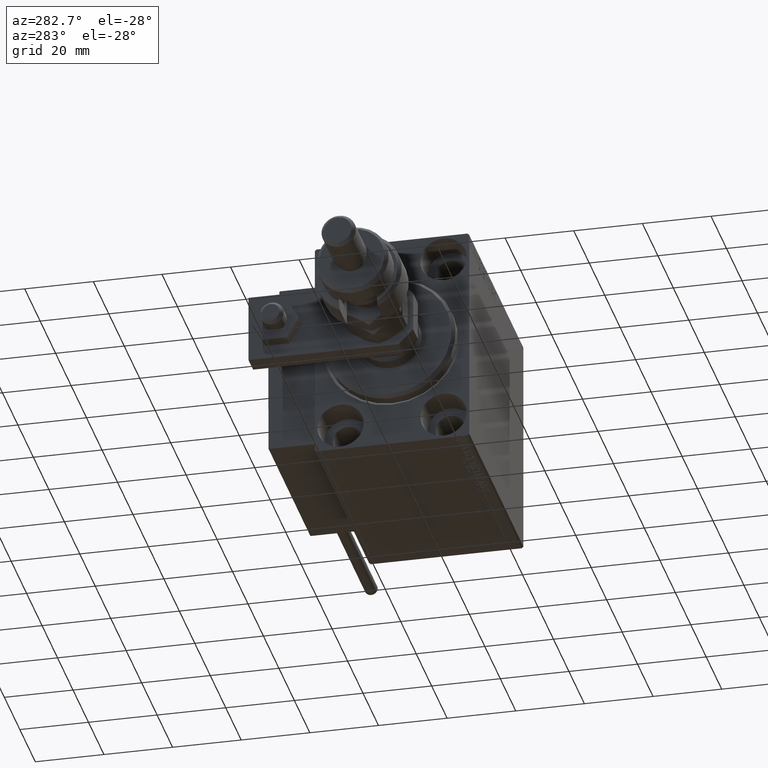
[diagram: clean part render]
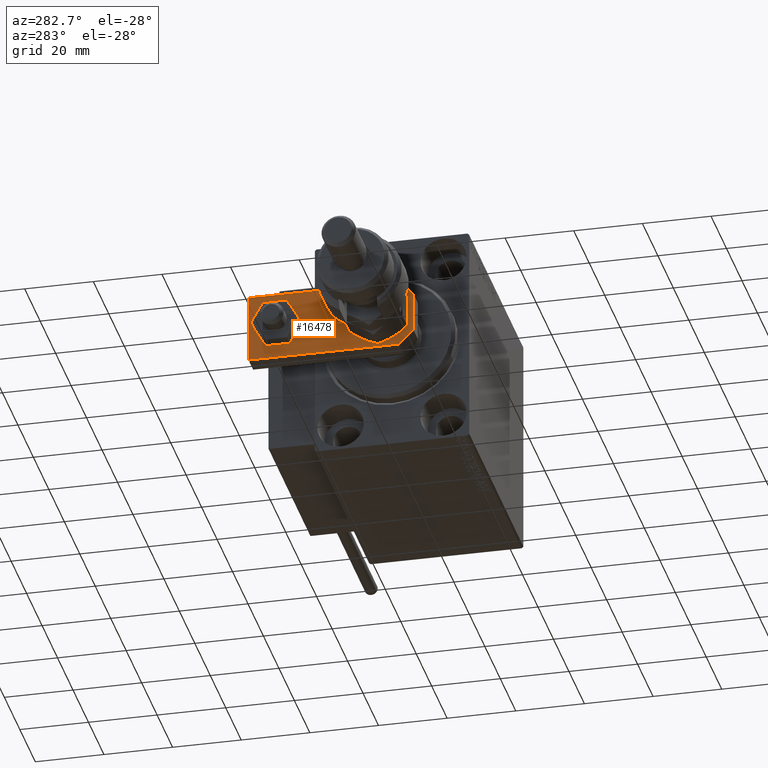
[diagram: same view with one face highlighted and labeled with its STEP entity id]
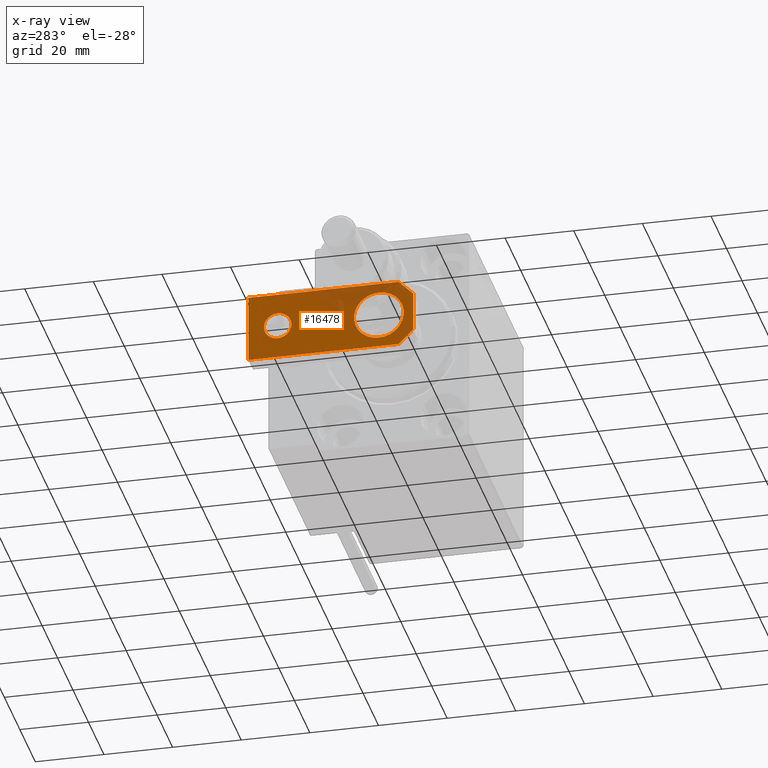
[diagram: x-ray of the same camera — body ghosted, the highlighted face saturated]
A machine part, auxiliary view. The second image highlights one B-rep face of the part: STEP entity #16478.
The next image is the same camera in x-ray: the body ghosted, the highlighted face saturated — about 16% of this face is hidden behind the body in this view.
In plain terms, the highlighted planar face has unit normal (-1, 0, 0).
Its self-contained STEP definition (entity closure, byte-faithful):
#24 = DIRECTION ( 'NONE',  ( -7.228014483236695816E-17, 1.000000000000000000, 0.000000000000000000 ) ) ;
#1155 = AXIS2_PLACEMENT_3D ( 'NONE', #45287, #20260, #33181 ) ;
#1897 = CARTESIAN_POINT ( 'NONE',  ( -4.000000000000000888, 39.50000000000000000, 6.000000000000000000 ) ) ;
#2245 = ORIENTED_EDGE ( 'NONE', *, *, #37503, .F. ) ;
#2305 = VERTEX_POINT ( 'NONE', #27616 ) ;
#2429 = DIRECTION ( 'NONE',  ( -1.000000000000000000, 0.000000000000000000, 0.000000000000000000 ) ) ;
#2437 = PLANE ( 'NONE',  #41301 ) ;
#3530 = VERTEX_POINT ( 'NONE', #35622 ) ;
#3766 = VERTEX_POINT ( 'NONE', #42326 ) ;
#5132 = DIRECTION ( 'NONE',  ( 0.7071067811865464625, -0.7071067811865486830, 0.000000000000000000 ) ) ;
#5403 = CIRCLE ( 'NONE', #1155, 7.250000000000000000 ) ;
#7005 = FACE_BOUND ( 'NONE', #32403, .T. ) ;
#7854 = EDGE_CURVE ( 'NONE', #14682, #37160, #33189, .T. ) ;
#8200 = DIRECTION ( 'NONE',  ( 1.000000000000000000, 0.000000000000000000, 0.000000000000000000 ) ) ;
#8760 = ORIENTED_EDGE ( 'NONE', *, *, #39430, .F. ) ;
#9091 = DIRECTION ( 'NONE',  ( 1.000000000000000000, 0.000000000000000000, 0.000000000000000000 ) ) ;
#9419 = CARTESIAN_POINT ( 'NONE',  ( -2.880000000000006999, -2.879999999999998561, 6.000000000000000000 ) ) ;
#9606 = EDGE_LOOP ( 'NONE', ( #16649, #29795, #47830, #31931, #33652, #28852 ) ) ;
#9820 = VERTEX_POINT ( 'NONE', #43743 ) ;
#10135 = VECTOR ( 'NONE', #44813, 1000.000000000000114 ) ;
#10544 = EDGE_CURVE ( 'NONE', #3766, #34253, #48882, .T. ) ;
#10783 = VERTEX_POINT ( 'NONE', #42420 ) ;
#10998 = DIRECTION ( 'NONE',  ( 0.000000000000000000, 0.000000000000000000, 1.000000000000000000 ) ) ;
#11526 = CARTESIAN_POINT ( 'NONE',  ( -1.432611055310774642E-16, 39.50000000000000000, 6.000000000000000000 ) ) ;
#13877 = EDGE_CURVE ( 'NONE', #37160, #14682, #20549, .T. ) ;
#14661 = EDGE_CURVE ( 'NONE', #3530, #3766, #34953, .T. ) ;
#14682 = VERTEX_POINT ( 'NONE', #1897 ) ;
#14772 = CARTESIAN_POINT ( 'NONE',  ( 0.000000000000000000, 0.000000000000000000, 6.000000000000000000 ) ) ;
#16247 = VECTOR ( 'NONE', #28173, 1000.000000000000000 ) ;
#16478 = ADVANCED_FACE ( 'NONE', ( #7005, #46811, #18546 ), #2437, .T. ) ;
#16649 = ORIENTED_EDGE ( 'NONE', *, *, #10544, .T. ) ;
#17378 = VECTOR ( 'NONE', #24, 1000.000000000000000 ) ;
#18546 = FACE_BOUND ( 'NONE', #48738, .T. ) ;
#18866 = VECTOR ( 'NONE', #2429, 1000.000000000000000 ) ;
#19183 = AXIS2_PLACEMENT_3D ( 'NONE', #28857, #24294, #25096 ) ;
#20112 = EDGE_CURVE ( 'NONE', #33985, #3530, #37377, .T. ) ;
#20260 = DIRECTION ( 'NONE',  ( 0.000000000000000000, 0.000000000000000000, 1.000000000000000000 ) ) ;
#20287 = LINE ( 'NONE', #45046, #30576 ) ;
#20549 = CIRCLE ( 'NONE', #24868, 4.000000000000000888 ) ;
#21497 = CARTESIAN_POINT ( 'NONE',  ( 10.00000000000000533, 4.239999999999986890, 6.000000000000000000 ) ) ;
#24294 = DIRECTION ( 'NONE',  ( 0.000000000000000000, 0.000000000000000000, 1.000000000000000000 ) ) ;
#24868 = AXIS2_PLACEMENT_3D ( 'NONE', #49972, #28988, #9091 ) ;
#25096 = DIRECTION ( 'NONE',  ( 1.000000000000000000, 0.000000000000000000, 0.000000000000000000 ) ) ;
#27616 = CARTESIAN_POINT ( 'NONE',  ( 7.250000000000000000, 10.00000000000000355, 6.000000000000000000 ) ) ;
#28173 = DIRECTION ( 'NONE',  ( -1.084202172485504434E-16, -1.000000000000000000, 0.000000000000000000 ) ) ;
#28431 = CARTESIAN_POINT ( 'NONE',  ( -10.00000000000000000, 48.00000000000000000, 6.000000000000000000 ) ) ;
#28852 = ORIENTED_EDGE ( 'NONE', *, *, #14661, .T. ) ;
#28857 = CARTESIAN_POINT ( 'NONE',  ( -9.629649721936179265E-32, 10.00000000000000178, 6.000000000000000000 ) ) ;
#28884 = AXIS2_PLACEMENT_3D ( 'NONE', #11526, #10998, #52658 ) ;
#28988 = DIRECTION ( 'NONE',  ( 0.000000000000000000, 0.000000000000000000, 1.000000000000000000 ) ) ;
#29795 = ORIENTED_EDGE ( 'NONE', *, *, #40043, .T. ) ;
#30576 = VECTOR ( 'NONE', #8200, 1000.000000000000000 ) ;
#30666 = DIRECTION ( 'NONE',  ( 1.000000000000000000, 0.000000000000000000, 0.000000000000000000 ) ) ;
#31846 = EDGE_CURVE ( 'NONE', #9820, #42327, #20287, .T. ) ;
#31931 = ORIENTED_EDGE ( 'NONE', *, *, #52018, .T. ) ;
#32403 = EDGE_LOOP ( 'NONE', ( #47792, #32728 ) ) ;
#32728 = ORIENTED_EDGE ( 'NONE', *, *, #13877, .F. ) ;
#33181 = DIRECTION ( 'NONE',  ( 1.000000000000000000, 0.000000000000000000, 0.000000000000000000 ) ) ;
#33189 = CIRCLE ( 'NONE', #28884, 4.000000000000000888 ) ;
#33652 = ORIENTED_EDGE ( 'NONE', *, *, #20112, .T. ) ;
#33985 = VERTEX_POINT ( 'NONE', #21497 ) ;
#34253 = VERTEX_POINT ( 'NONE', #36489 ) ;
#34953 = LINE ( 'NONE', #39787, #18866 ) ;
#34960 = DIRECTION ( 'NONE',  ( -0.000000000000000000, 0.000000000000000000, 1.000000000000000000 ) ) ;
#35622 = CARTESIAN_POINT ( 'NONE',  ( 10.00000000000000178, 48.00000000000000000, 6.000000000000000000 ) ) ;
#36489 = CARTESIAN_POINT ( 'NONE',  ( -10.00000000000000533, 4.240000000000021529, 6.000000000000000000 ) ) ;
#36833 = CARTESIAN_POINT ( 'NONE',  ( 10.00000000000000533, 0.000000000000000000, 6.000000000000000000 ) ) ;
#36928 = CARTESIAN_POINT ( 'NONE',  ( 5.759999999999998010, 0.000000000000000000, 6.000000000000000000 ) ) ;
#37160 = VERTEX_POINT ( 'NONE', #39991 ) ;
#37377 = LINE ( 'NONE', #36833, #17378 ) ;
#37503 = EDGE_CURVE ( 'NONE', #10783, #2305, #5403, .T. ) ;
#39430 = EDGE_CURVE ( 'NONE', #2305, #10783, #49269, .T. ) ;
#39787 = CARTESIAN_POINT ( 'NONE',  ( 10.00000000000000178, 48.00000000000000000, 6.000000000000000000 ) ) ;
#39991 = CARTESIAN_POINT ( 'NONE',  ( 4.000000000000000888, 39.50000000000000000, 6.000000000000000000 ) ) ;
#40043 = EDGE_CURVE ( 'NONE', #34253, #9820, #45473, .T. ) ;
#40780 = CARTESIAN_POINT ( 'NONE',  ( 2.879999999999984350, -2.879999999999999005, 6.000000000000000000 ) ) ;
#41301 = AXIS2_PLACEMENT_3D ( 'NONE', #14772, #34960, #30666 ) ;
#42326 = CARTESIAN_POINT ( 'NONE',  ( -10.00000000000000000, 48.00000000000000000, 6.000000000000000000 ) ) ;
#42327 = VERTEX_POINT ( 'NONE', #36928 ) ;
#42420 = CARTESIAN_POINT ( 'NONE',  ( -7.250000000000000000, 10.00000000000000178, 6.000000000000000000 ) ) ;
#43743 = CARTESIAN_POINT ( 'NONE',  ( -5.759999999999997122, 0.000000000000000000, 6.000000000000000000 ) ) ;
#44813 = DIRECTION ( 'NONE',  ( 0.7071067811865492381, 0.7071067811865457964, -0.000000000000000000 ) ) ;
#45046 = CARTESIAN_POINT ( 'NONE',  ( -10.00000000000000533, 0.000000000000000000, 6.000000000000000000 ) ) ;
#45287 = CARTESIAN_POINT ( 'NONE',  ( -9.629649721936179265E-32, 10.00000000000000178, 6.000000000000000000 ) ) ;
#45473 = LINE ( 'NONE', #9419, #50994 ) ;
#46811 = FACE_OUTER_BOUND ( 'NONE', #9606, .T. ) ;
#47792 = ORIENTED_EDGE ( 'NONE', *, *, #7854, .F. ) ;
#47830 = ORIENTED_EDGE ( 'NONE', *, *, #31846, .T. ) ;
#48738 = EDGE_LOOP ( 'NONE', ( #2245, #8760 ) ) ;
#48882 = LINE ( 'NONE', #28431, #16247 ) ;
#49116 = LINE ( 'NONE', #40780, #10135 ) ;
#49269 = CIRCLE ( 'NONE', #19183, 7.250000000000000000 ) ;
#49972 = CARTESIAN_POINT ( 'NONE',  ( -1.432611055310774642E-16, 39.50000000000000000, 6.000000000000000000 ) ) ;
#50994 = VECTOR ( 'NONE', #5132, 999.9999999999998863 ) ;
#52018 = EDGE_CURVE ( 'NONE', #42327, #33985, #49116, .T. ) ;
#52658 = DIRECTION ( 'NONE',  ( 1.000000000000000000, 0.000000000000000000, 0.000000000000000000 ) ) ;